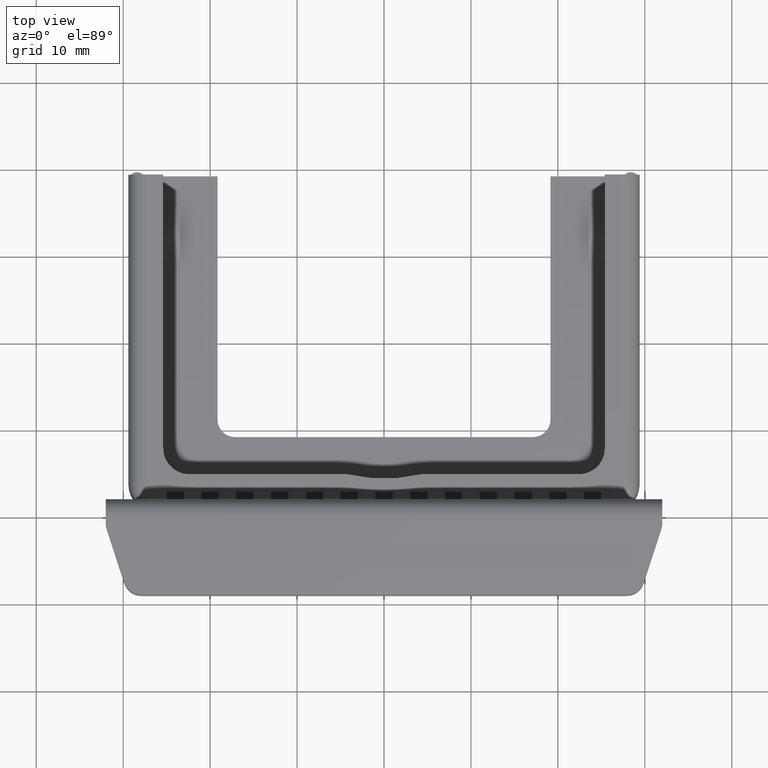
[diagram: clean part render]
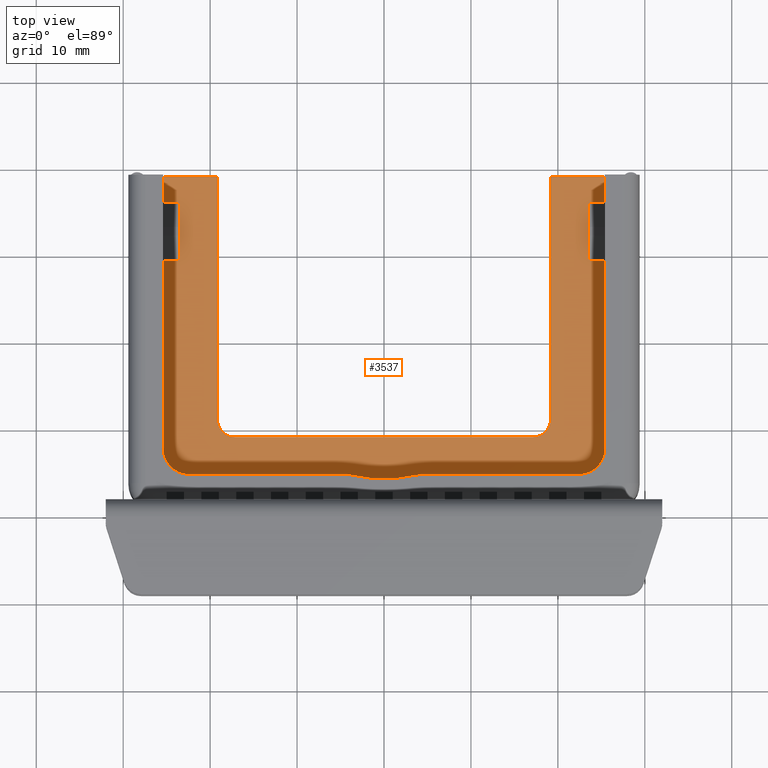
[diagram: same view with one face highlighted and labeled with its STEP entity id]
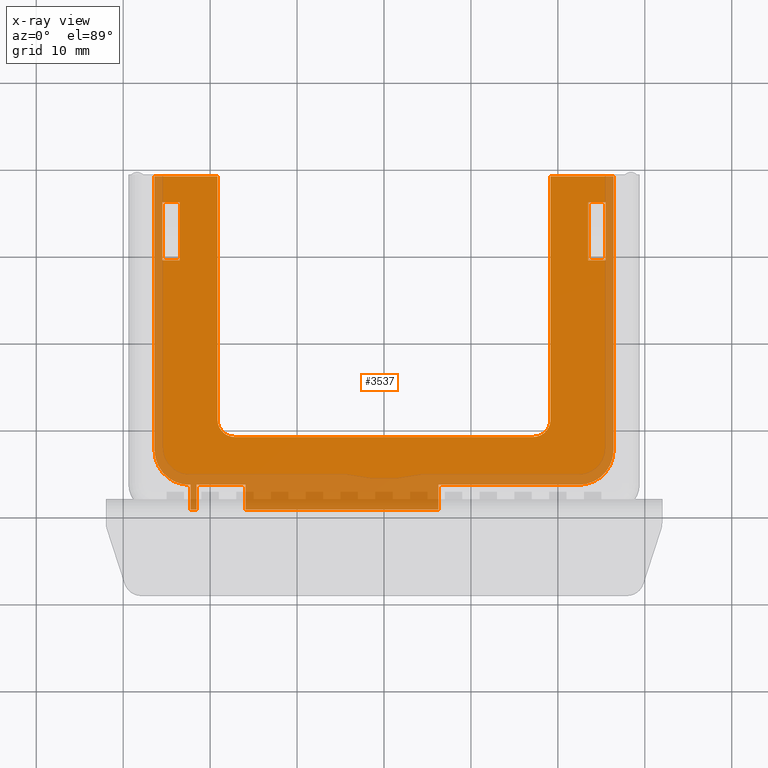
[diagram: x-ray of the same camera — body ghosted, the highlighted face saturated]
A machine part, top view. The second image highlights one B-rep face of the part: STEP entity #3537.
The next image is the same camera in x-ray: the body ghosted, the highlighted face saturated — about 25% of this face is hidden behind the body in this view.
In plain terms, the highlighted planar face has unit normal (0, 0, 1).
Its self-contained STEP definition (entity closure, byte-faithful):
#478=CIRCLE('',#3747,0.4);
#479=CIRCLE('',#3748,0.2);
#480=CIRCLE('',#3749,0.2);
#481=CIRCLE('',#3750,0.4);
#647=VERTEX_POINT('',#4853);
#648=VERTEX_POINT('',#4855);
#649=VERTEX_POINT('',#4859);
#650=VERTEX_POINT('',#4861);
#651=VERTEX_POINT('',#4869);
#654=VERTEX_POINT('',#4874);
#657=VERTEX_POINT('',#4884);
#658=VERTEX_POINT('',#4886);
#692=VERTEX_POINT('',#5047);
#693=VERTEX_POINT('',#5049);
#695=VERTEX_POINT('',#5088);
#696=VERTEX_POINT('',#5090);
#697=VERTEX_POINT('',#5092);
#698=VERTEX_POINT('',#5094);
#699=VERTEX_POINT('',#5096);
#700=VERTEX_POINT('',#5098);
#701=VERTEX_POINT('',#5100);
#702=VERTEX_POINT('',#5102);
#703=VERTEX_POINT('',#5104);
#704=VERTEX_POINT('',#5105);
#705=VERTEX_POINT('',#5107);
#706=VERTEX_POINT('',#5109);
#707=VERTEX_POINT('',#5111);
#708=VERTEX_POINT('',#5113);
#709=VERTEX_POINT('',#5115);
#710=VERTEX_POINT('',#5117);
#711=VERTEX_POINT('',#5119);
#970=VECTOR('',#4029,1.);
#974=VECTOR('',#4034,1.);
#975=VECTOR('',#4036,1.);
#976=VECTOR('',#4038,1.);
#980=VECTOR('',#4043,1.);
#985=VECTOR('',#4050,1.);
#987=VECTOR('',#4053,1.);
#988=VECTOR('',#4055,1.);
#1010=VECTOR('',#4126,1.);
#1012=VECTOR('',#4129,1.);
#1013=VECTOR('',#4132,1.);
#1014=VECTOR('',#4133,1.);
#1015=VECTOR('',#4134,1.);
#1016=VECTOR('',#4137,1.);
#1017=VECTOR('',#4140,1.);
#1018=VECTOR('',#4141,1.);
#1019=VECTOR('',#4144,1.);
#1020=VECTOR('',#4145,1.);
#1021=VECTOR('',#4146,1.);
#1022=VECTOR('',#4147,1.);
#1023=VECTOR('',#4148,1.);
#1285=LINE('',#4854,#970);
#1289=LINE('',#4862,#974);
#1290=LINE('',#4864,#975);
#1291=LINE('',#4866,#976);
#1295=LINE('',#4875,#980);
#1300=LINE('',#4885,#985);
#1302=LINE('',#4889,#987);
#1303=LINE('',#4891,#988);
#1325=LINE('',#5048,#1010);
#1327=LINE('',#5087,#1012);
#1328=LINE('',#5091,#1013);
#1329=LINE('',#5093,#1014);
#1330=LINE('',#5095,#1015);
#1331=LINE('',#5099,#1016);
#1332=LINE('',#5103,#1017);
#1333=LINE('',#5106,#1018);
#1334=LINE('',#5110,#1019);
#1335=LINE('',#5112,#1020);
#1336=LINE('',#5114,#1021);
#1337=LINE('',#5116,#1022);
#1338=LINE('',#5118,#1023);
#1600=EDGE_CURVE('',#648,#647,#1285,.T.);
#1604=EDGE_CURVE('',#649,#650,#1289,.T.);
#1605=EDGE_CURVE('',#647,#649,#1290,.T.);
#1606=EDGE_CURVE('',#650,#648,#1291,.T.);
#1610=EDGE_CURVE('',#651,#654,#1295,.T.);
#1615=EDGE_CURVE('',#658,#657,#1300,.T.);
#1617=EDGE_CURVE('',#657,#651,#1302,.T.);
#1618=EDGE_CURVE('',#654,#658,#1303,.T.);
#1659=EDGE_CURVE('',#692,#693,#1325,.T.);
#1662=EDGE_CURVE('',#695,#692,#1327,.T.);
#1663=EDGE_CURVE('',#696,#695,#478,.T.);
#1664=EDGE_CURVE('',#697,#696,#1328,.T.);
#1665=EDGE_CURVE('',#698,#697,#1329,.T.);
#1666=EDGE_CURVE('',#698,#699,#1330,.T.);
#1667=EDGE_CURVE('',#700,#699,#479,.T.);
#1668=EDGE_CURVE('',#700,#701,#1331,.T.);
#1669=EDGE_CURVE('',#702,#701,#480,.T.);
#1670=EDGE_CURVE('',#702,#703,#1332,.T.);
#1671=EDGE_CURVE('',#704,#703,#1329,.T.);
#1672=EDGE_CURVE('',#705,#704,#1333,.T.);
#1673=EDGE_CURVE('',#706,#705,#481,.T.);
#1674=EDGE_CURVE('',#707,#706,#1334,.T.);
#1675=EDGE_CURVE('',#708,#707,#1335,.T.);
#1676=EDGE_CURVE('',#708,#709,#1336,.T.);
#1677=EDGE_CURVE('',#709,#710,#1337,.T.);
#1678=EDGE_CURVE('',#710,#711,#1338,.T.);
#1679=EDGE_CURVE('',#693,#711,#1335,.T.);
#2200=ORIENTED_EDGE('',*,*,#1604,.T.);
#2201=ORIENTED_EDGE('',*,*,#1606,.T.);
#2202=ORIENTED_EDGE('',*,*,#1600,.T.);
#2203=ORIENTED_EDGE('',*,*,#1605,.T.);
#2204=ORIENTED_EDGE('',*,*,#1615,.T.);
#2205=ORIENTED_EDGE('',*,*,#1617,.T.);
#2206=ORIENTED_EDGE('',*,*,#1610,.T.);
#2207=ORIENTED_EDGE('',*,*,#1618,.T.);
#2208=ORIENTED_EDGE('',*,*,#1659,.F.);
#2209=ORIENTED_EDGE('',*,*,#1662,.F.);
#2210=ORIENTED_EDGE('',*,*,#1663,.F.);
#2211=ORIENTED_EDGE('',*,*,#1664,.F.);
#2212=ORIENTED_EDGE('',*,*,#1665,.F.);
#2213=ORIENTED_EDGE('',*,*,#1666,.T.);
#2214=ORIENTED_EDGE('',*,*,#1667,.F.);
#2215=ORIENTED_EDGE('',*,*,#1668,.T.);
#2216=ORIENTED_EDGE('',*,*,#1669,.F.);
#2217=ORIENTED_EDGE('',*,*,#1670,.T.);
#2218=ORIENTED_EDGE('',*,*,#1671,.F.);
#2219=ORIENTED_EDGE('',*,*,#1672,.F.);
#2220=ORIENTED_EDGE('',*,*,#1673,.F.);
#2221=ORIENTED_EDGE('',*,*,#1674,.F.);
#2222=ORIENTED_EDGE('',*,*,#1675,.F.);
#2223=ORIENTED_EDGE('',*,*,#1676,.T.);
#2224=ORIENTED_EDGE('',*,*,#1677,.T.);
#2225=ORIENTED_EDGE('',*,*,#1678,.T.);
#2226=ORIENTED_EDGE('',*,*,#1679,.F.);
#3145=EDGE_LOOP('',(#2200,#2201,#2202,#2203));
#3146=EDGE_LOOP('',(#2204,#2205,#2206,#2207));
#3147=EDGE_LOOP('',(#2208,#2209,#2210,#2211,#2212,#2213,#2214,#2215,#2216,
#2217,#2218,#2219,#2220,#2221,#2222,#2223,#2224,#2225,#2226));
#3341=FACE_BOUND('',#3145,.T.);
#3342=FACE_BOUND('',#3146,.T.);
#3343=FACE_BOUND('',#3147,.T.);
#3537=ADVANCED_FACE('',(#3341,#3342,#3343),#6169,.T.);
#3746=AXIS2_PLACEMENT_3D('',#5086,#4128,$);
#3747=AXIS2_PLACEMENT_3D('',#5089,#4130,#4131);
#3748=AXIS2_PLACEMENT_3D('',#5097,#4135,#4136);
#3749=AXIS2_PLACEMENT_3D('',#5101,#4138,#4139);
#3750=AXIS2_PLACEMENT_3D('',#5108,#4142,#4143);
#4029=DIRECTION('',(-1.,0.,0.));
#4034=DIRECTION('',(1.,0.,0.));
#4036=DIRECTION('',(3.83747340709527E-030,1.,0.));
#4038=DIRECTION('',(-3.83747340709527E-030,-1.,0.));
#4043=DIRECTION('',(-1.,0.,0.));
#4050=DIRECTION('',(1.,0.,0.));
#4053=DIRECTION('',(3.83747340709527E-030,-1.,0.));
#4055=DIRECTION('',(-3.83747340709527E-030,1.,0.));
#4126=DIRECTION('',(0.,-1.,0.));
#4128=DIRECTION('',(0.,0.,1.));
#4129=DIRECTION('',(-1.,0.,0.));
#4130=DIRECTION('',(0.,0.,-1.));
#4131=DIRECTION('',(0.282842712474619,-0.282842712474619,0.));
#4132=DIRECTION('',(0.,-1.,0.));
#4133=DIRECTION('',(1.,0.,0.));
#4134=DIRECTION('',(0.,-1.,0.));
#4135=DIRECTION('',(0.,0.,1.));
#4136=DIRECTION('',(0.141421356237309,-0.14142135623731,0.));
#4137=DIRECTION('',(-1.,0.,0.));
#4138=DIRECTION('',(0.,0.,1.));
#4139=DIRECTION('',(-0.141421356237309,-0.14142135623731,0.));
#4140=DIRECTION('',(0.,1.,0.));
#4141=DIRECTION('',(0.,1.,0.));
#4142=DIRECTION('',(0.,0.,-1.));
#4143=DIRECTION('',(-0.282842712474619,-0.282842712474619,0.));
#4144=DIRECTION('',(0.,1.,0.));
#4145=DIRECTION('',(-1.,0.,0.));
#4146=DIRECTION('',(0.,1.,0.));
#4147=DIRECTION('',(1.,0.,0.));
#4148=DIRECTION('',(0.,-1.,0.));
#4853=CARTESIAN_POINT('',(-2.55,0.957871818038232,0.2));
#4854=CARTESIAN_POINT('',(-1.175,0.957871818038232,0.2));
#4855=CARTESIAN_POINT('',(-2.35,0.957871818038232,0.2));
#4859=CARTESIAN_POINT('',(-2.55,1.625,0.2));
#4861=CARTESIAN_POINT('',(-2.35,1.625,0.2));
#4862=CARTESIAN_POINT('',(-1.175,1.625,0.2));
#4864=CARTESIAN_POINT('',(-2.55,0.645717954509558,0.2));
#4866=CARTESIAN_POINT('',(-2.35,0.645717954509558,0.2));
#4869=CARTESIAN_POINT('',(2.55,0.957871818038232,0.2));
#4874=CARTESIAN_POINT('',(2.35,0.957871818038232,0.2));
#4875=CARTESIAN_POINT('',(1.175,0.957871818038232,0.2));
#4884=CARTESIAN_POINT('',(2.55,1.625,0.2));
#4885=CARTESIAN_POINT('',(1.175,1.625,0.2));
#4886=CARTESIAN_POINT('',(2.35,1.625,0.2));
#4889=CARTESIAN_POINT('',(2.55,0.645717954509558,0.2));
#4891=CARTESIAN_POINT('',(2.35,0.645717954509558,0.2));
#5047=CARTESIAN_POINT('',(0.625,-1.625,0.2));
#5048=CARTESIAN_POINT('',(0.625,-1.0625,0.2));
#5049=CARTESIAN_POINT('',(0.625,-1.90784271247462,0.2));
#5086=CARTESIAN_POINT('',(4.87946286820213E-017,0.,0.2));
#5087=CARTESIAN_POINT('',(2.43973143410106E-017,-1.625,0.2));
#5088=CARTESIAN_POINT('',(2.24,-1.625,0.2));
#5089=CARTESIAN_POINT('',(2.24,-1.225,0.2));
#5090=CARTESIAN_POINT('',(2.64,-1.225,0.2));
#5091=CARTESIAN_POINT('',(2.64,0.,0.2));
#5092=CARTESIAN_POINT('',(2.64,1.925,0.2));
#5093=CARTESIAN_POINT('',(2.43973143410106E-017,1.925,0.2));
#5094=CARTESIAN_POINT('',(1.915,1.925,0.2));
#5095=CARTESIAN_POINT('',(1.915,0.2875,0.2));
#5096=CARTESIAN_POINT('',(1.915,-0.875,0.2));
#5097=CARTESIAN_POINT('',(1.715,-0.875,0.2));
#5098=CARTESIAN_POINT('',(1.715,-1.075,0.2));
#5099=CARTESIAN_POINT('',(2.43973143410106E-017,-1.075,0.2));
#5100=CARTESIAN_POINT('',(-1.715,-1.075,0.2));
#5101=CARTESIAN_POINT('',(-1.715,-0.875,0.2));
#5102=CARTESIAN_POINT('',(-1.915,-0.875,0.2));
#5103=CARTESIAN_POINT('',(-1.915,0.2875,0.2));
#5104=CARTESIAN_POINT('',(-1.915,1.925,0.2));
#5105=CARTESIAN_POINT('',(-2.64,1.925,0.2));
#5106=CARTESIAN_POINT('',(-2.64,0.,0.2));
#5107=CARTESIAN_POINT('',(-2.64,-1.225,0.2));
#5108=CARTESIAN_POINT('',(-2.24,-1.225,0.2));
#5109=CARTESIAN_POINT('',(-2.224,-1.6246798718975,0.2));
#5110=CARTESIAN_POINT('',(-2.224,-1.0625,0.2));
#5111=CARTESIAN_POINT('',(-2.224,-1.90784271247462,0.2));
#5112=CARTESIAN_POINT('',(-0.7995,-1.90784271247462,0.2));
#5113=CARTESIAN_POINT('',(-2.15684271247462,-1.90784271247462,0.2));
#5114=CARTESIAN_POINT('',(-2.15684271247462,-1.76642135623731,0.2));
#5115=CARTESIAN_POINT('',(-2.15684271247462,-1.625,0.2));
#5116=CARTESIAN_POINT('',(-0.937,-1.625,0.2));
#5117=CARTESIAN_POINT('',(-1.59115728752538,-1.625,0.2));
#5118=CARTESIAN_POINT('',(-1.59115728752538,-1.76642135623731,0.2));
#5119=CARTESIAN_POINT('',(-1.59115728752538,-1.90784271247462,0.2));
#6169=PLANE('',#3746);